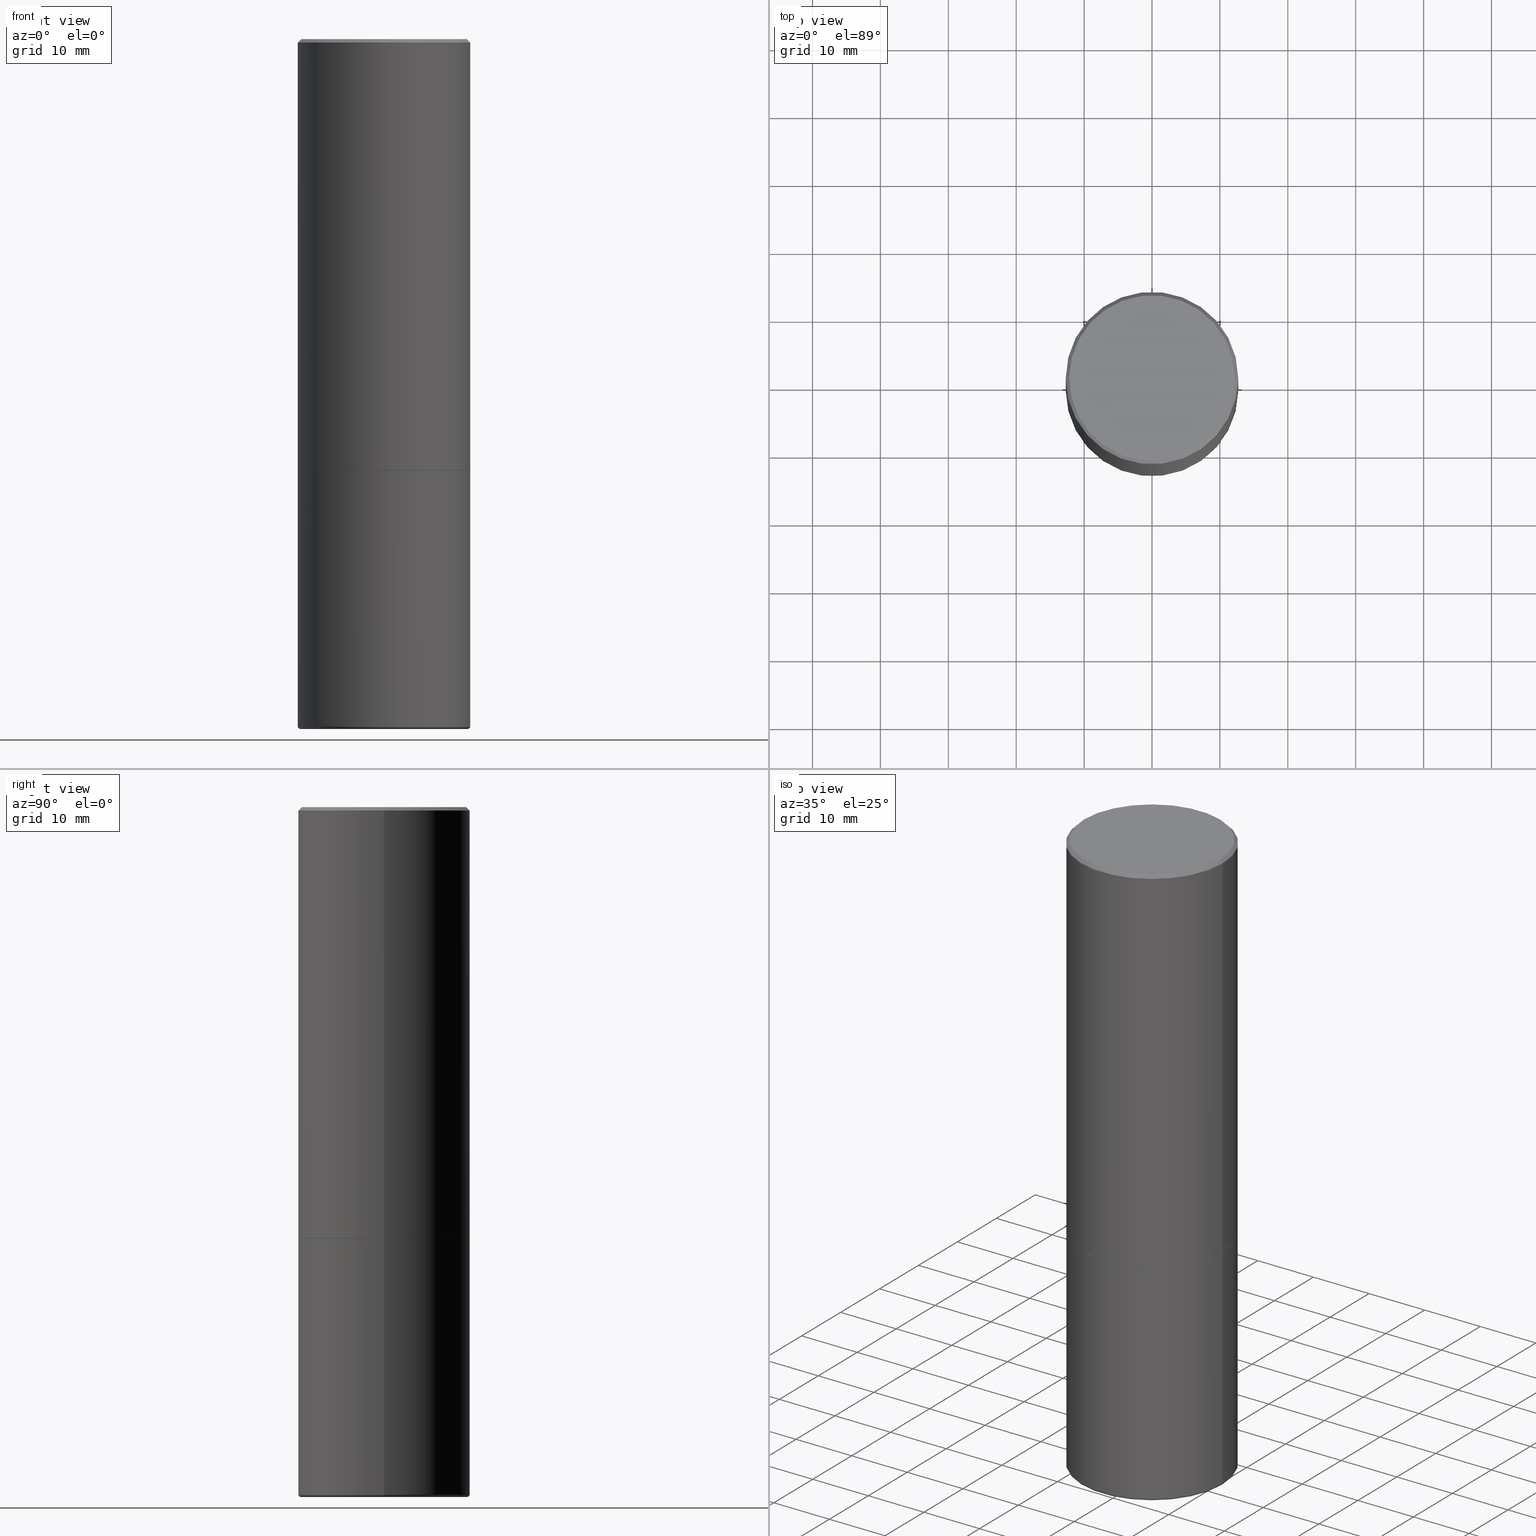
[diagram: canonical four-view strip — front | top / right | iso, engineering-drawing reading convention]
A machine part, canonical four-view strip (front | top / right | iso — engineering-drawing reading convention). The complete STEP part file that produces these views, byte-faithful:
ISO-10303-21;
HEADER;
FILE_DESCRIPTION (( 'STEP AP203' ),
    '1' );
FILE_NAME ('38150.STEP',
    '2023-03-22T20:24:40',
    ( '' ),
    ( '' ),
    'SwSTEP 2.0',
    'SolidWorks 2022',
    '' );
FILE_SCHEMA (( 'CONFIG_CONTROL_DESIGN' ));
ENDSEC;

DATA;
#1 = ORIENTED_EDGE ( 'NONE', *, *, #234, .T. ) ;
#2 = CC_DESIGN_PERSON_AND_ORGANIZATION_ASSIGNMENT ( #268, #403, ( #200 ) ) ;
#3 = COORDINATED_UNIVERSAL_TIME_OFFSET ( 5, 0, .BEHIND. ) ;
#4 = VERTEX_POINT ( 'NONE', #212 ) ;
#5 = SECURITY_CLASSIFICATION_LEVEL ( 'unclassified' ) ;
#6 = AXIS2_PLACEMENT_3D ( 'NONE', #103, #240, #35 ) ;
#7 = CC_DESIGN_PERSON_AND_ORGANIZATION_ASSIGNMENT ( #421, #39, ( #332 ) ) ;
#8 = CARTESIAN_POINT ( 'NONE',  ( -0.4842149606563559416, -1.044314117888104667E-14, -3.999999999999999556 ) ) ;
#9 = ORIENTED_EDGE ( 'NONE', *, *, #310, .F. ) ;
#10 = ADVANCED_FACE ( 'NONE', ( #373 ), #440, .F. ) ;
#11 = CIRCLE ( 'NONE', #411, 0.4799999999999996492 ) ;
#12 = DIRECTION ( 'NONE',  ( -1.000000000000000000, 7.105427357601001859E-15, 0.000000000000000000 ) ) ;
#13 = EDGE_CURVE ( 'NONE', #229, #125, #299, .T. ) ;
#14 = AXIS2_PLACEMENT_3D ( 'NONE', #372, #165, #340 ) ;
#15 = CC_DESIGN_PERSON_AND_ORGANIZATION_ASSIGNMENT ( #176, #209, ( #311 ) ) ;
#16 = ORIENTED_EDGE ( 'NONE', *, *, #390, .F. ) ;
#17 = DIRECTION ( 'NONE',  ( -2.445468806185136597E-29, 3.491481338843145583E-15, 1.000000000000000000 ) ) ;
#18 = CALENDAR_DATE ( 2023, 22, 3 ) ;
#19 = ORIENTED_EDGE ( 'NONE', *, *, #439, .T. ) ;
#20 = DIRECTION ( 'NONE',  ( 1.000000000000000000, -6.982962677686266711E-15, 0.000000000000000000 ) ) ;
#21 = CIRCLE ( 'NONE', #417, 0.4842149606563559416 ) ;
#22 = ORIENTED_EDGE ( 'NONE', *, *, #71, .T. ) ;
#23 = EDGE_LOOP ( 'NONE', ( #290, #38, #406, #55 ) ) ;
#24 = CARTESIAN_POINT ( 'NONE',  ( 0.5000000000000000000, -1.740510624844051430E-14, -3.985020556978680961 ) ) ;
#25 = EDGE_CURVE ( 'NONE', #115, #157, #367, .T. ) ;
#26 = CARTESIAN_POINT ( 'NONE',  ( -0.4799999999999996492, 3.386736898677836830E-15, 1.280553747027767124E-17 ) ) ;
#27 = CARTESIAN_POINT ( 'NONE',  ( 9.076463885798192231E-18, -1.387732332254885124E-14, -3.974623369216377267 ) ) ;
#28 = CARTESIAN_POINT ( 'NONE',  ( 0.000000000000000000, 0.000000000000000000, 0.000000000000000000 ) ) ;
#29 = CARTESIAN_POINT ( 'NONE',  ( 9.745243464097882936E-29, -1.391362490959738252E-14, -3.985020556978680961 ) ) ;
#30 = CARTESIAN_POINT ( 'NONE',  ( -0.4999999999999998335, 3.552713678800499746E-15, -2.459467545127452330E-29 ) ) ;
#31 = PERSON_AND_ORGANIZATION ( #303, #316 ) ;
#32 = CARTESIAN_POINT ( 'NONE',  ( -0.5000000000000000000, -8.448070674724403070E-16, -2.499000000000000110 ) ) ;
#33 = APPROVAL_STATUS ( 'not_yet_approved' ) ;
#34 = DIRECTION ( 'NONE',  ( 2.445468806185136597E-29, -3.491481338843145583E-15, -1.000000000000000000 ) ) ;
#35 = DIRECTION ( 'NONE',  ( 1.000000000000000000, 0.000000000000000000, 0.000000000000000000 ) ) ;
#36 = TOROIDAL_SURFACE ( 'NONE', #262, 0.4850000000000000422, 0.01499999999999998557 ) ;
#37 = CIRCLE ( 'NONE', #331, 0.5000000000000000000 ) ;
#38 = ORIENTED_EDGE ( 'NONE', *, *, #13, .T. ) ;
#39 = PERSON_AND_ORGANIZATION_ROLE ( 'design_supplier' ) ;
#40 = CC_DESIGN_DATE_AND_TIME_ASSIGNMENT ( #142, #274, ( #200 ) ) ;
#41 = DATE_AND_TIME ( #18, #96 ) ;
#42 = LENGTH_MEASURE_WITH_UNIT ( LENGTH_MEASURE( 0.02539999999999999897 ), #216 );
#43 = AXIS2_PLACEMENT_3D ( 'NONE', #428, #70, #398 ) ;
#44 = ORIENTED_EDGE ( 'NONE', *, *, #408, .F. ) ;
#45 = CC_DESIGN_APPROVAL ( #366, ( #332 ) ) ;
#46 = DIRECTION ( 'NONE',  ( 1.000000000000000000, -6.982962677686266711E-15, 0.000000000000000000 ) ) ;
#47 = ORIENTED_EDGE ( 'NONE', *, *, #128, .T. ) ;
#48 = CARTESIAN_POINT ( 'NONE',  ( 0.5000000000000000000, -1.222018468595099830E-14, -2.500000000000000000 ) ) ;
#49 = CYLINDRICAL_SURFACE ( 'NONE', #250, 0.4999999999999998335 ) ;
#50 = CARTESIAN_POINT ( 'NONE',  ( 0.4999999999999996669, -3.500078625662626318E-15, -0.02000000000000002123 ) ) ;
#51 = CARTESIAN_POINT ( 'NONE',  ( 9.781875224740545266E-29, -1.396592535537258075E-14, -3.999999999999999556 ) ) ;
#52 = CC_DESIGN_PERSON_AND_ORGANIZATION_ASSIGNMENT ( #149, #277, ( #332 ) ) ;
#53 = CC_DESIGN_SECURITY_CLASSIFICATION ( #354, ( #332 ) ) ;
#54 = DIRECTION ( 'NONE',  ( -2.445468806185136597E-29, 3.491481338843145583E-15, 1.000000000000000000 ) ) ;
#55 = ORIENTED_EDGE ( 'NONE', *, *, #361, .F. ) ;
#56 = CARTESIAN_POINT ( 'NONE',  ( 6.113672015462842613E-29, -8.728703347107866520E-15, -2.500000000000000444 ) ) ;
#57 = VERTEX_POINT ( 'NONE', #26 ) ;
#58 = FACE_OUTER_BOUND ( 'NONE', #217, .T. ) ;
#59 = AXIS2_PLACEMENT_3D ( 'NONE', #164, #237, #369 ) ;
#60 = EDGE_LOOP ( 'NONE', ( #47, #328 ) ) ;
#61 = FACE_OUTER_BOUND ( 'NONE', #352, .T. ) ;
#62 = ADVANCED_FACE ( 'NONE', ( #306 ), #345, .T. ) ;
#63 = CARTESIAN_POINT ( 'NONE',  ( -9.076463885603793485E-18, -1.387732332254885124E-14, -3.974623369216377267 ) ) ;
#64 = CYLINDRICAL_SURFACE ( 'NONE', #80, 0.4999999999999998335 ) ;
#65 = VECTOR ( 'NONE', #269, 39.37007874015748143 ) ;
#66 = CARTESIAN_POINT ( 'NONE',  ( 1.059981169218608704E-27, -1.513372185525939570E-13, -43.34470210937386270 ) ) ;
#67 = APPLICATION_PROTOCOL_DEFINITION ( 'international standard', 'config_control_design', 1994, #228 ) ;
#68 = LINE ( 'NONE', #300, #124 ) ;
#69 = DIRECTION ( 'NONE',  ( -2.445468806185136597E-29, 3.491481338843145583E-15, 1.000000000000000000 ) ) ;
#70 = DIRECTION ( 'NONE',  ( -6.982962677686266711E-15, -1.000000000000000000, 3.491481338843145583E-15 ) ) ;
#71 = EDGE_CURVE ( 'NONE', #224, #157, #377, .T. ) ;
#72 = PERSON_AND_ORGANIZATION ( #303, #316 ) ;
#73 = ORIENTED_EDGE ( 'NONE', *, *, #278, .F. ) ;
#74 = ADVANCED_FACE ( 'NONE', ( #338 ), #436, .T. ) ;
#75 = DATE_TIME_ROLE ( 'classification_date' ) ;
#76 = ADVANCED_FACE ( 'NONE', ( #267 ), #64, .T. ) ;
#77 = DATE_AND_TIME ( #101, #429 ) ;
#78 = DIRECTION ( 'NONE',  ( -2.445468806185136597E-29, 3.491481338843145583E-15, 1.000000000000000000 ) ) ;
#79 = ORIENTED_EDGE ( 'NONE', *, *, #155, .F. ) ;
#80 = AXIS2_PLACEMENT_3D ( 'NONE', #442, #309, #261 ) ;
#81 = ORIENTED_EDGE ( 'NONE', *, *, #143, .F. ) ;
#82 = CONICAL_SURFACE ( 'NONE', #97, 751.2258538476515923, 1.518436449235072594 ) ;
#83 = DIRECTION ( 'NONE',  ( 1.000000000000000000, -6.982962677686265133E-15, 0.000000000000000000 ) ) ;
#84 = DIRECTION ( 'NONE',  ( 7.105427357601001859E-15, 1.000000000000000000, -3.491481338843145583E-15 ) ) ;
#85 = CIRCLE ( 'NONE', #147, 0.01499999999999997689 ) ;
#86 =( GEOMETRIC_REPRESENTATION_CONTEXT ( 3 ) GLOBAL_UNCERTAINTY_ASSIGNED_CONTEXT ( ( #275 ) ) GLOBAL_UNIT_ASSIGNED_CONTEXT ( ( #252, #182, #418 ) ) REPRESENTATION_CONTEXT ( 'NONE', 'WORKASPACE' ) );
#87 = ORIENTED_EDGE ( 'NONE', *, *, #296, .T. ) ;
#88 = ADVANCED_FACE ( 'NONE', ( #270 ), #242, .F. ) ;
#89 = ORIENTED_EDGE ( 'NONE', *, *, #178, .T. ) ;
#90 = DIRECTION ( 'NONE',  ( -2.445468806185136597E-29, 3.491481338843145583E-15, 1.000000000000000000 ) ) ;
#91 = DIRECTION ( 'NONE',  ( -2.445468806185136597E-29, 3.491481338843145583E-15, 1.000000000000000000 ) ) ;
#92 = ORIENTED_EDGE ( 'NONE', *, *, #278, .T. ) ;
#93 = EDGE_CURVE ( 'NONE', #4, #360, #365, .T. ) ;
#94 = DIRECTION ( 'NONE',  ( 1.000000000000000000, -6.982962677686266711E-15, 0.000000000000000000 ) ) ;
#95 = CONICAL_SURFACE ( 'NONE', #123, 0.4989999999999999991, 0.7853981633972775267 ) ;
#96 = LOCAL_TIME ( 16, 24, 40.00000000000000000, #283 ) ;
#97 = AXIS2_PLACEMENT_3D ( 'NONE', #139, #241, #356 ) ;
#98 = LINE ( 'NONE', #135, #339 ) ;
#99 = FACE_OUTER_BOUND ( 'NONE', #194, .T. ) ;
#100 = CYLINDRICAL_SURFACE ( 'NONE', #172, 0.5000000000000000000 ) ;
#101 = CALENDAR_DATE ( 2023, 22, 3 ) ;
#102 = DIRECTION ( 'NONE',  ( -2.438088387897960049E-29, 3.491481338843145188E-15, 1.000000000000000000 ) ) ;
#103 = CARTESIAN_POINT ( 'NONE',  ( 0.000000000000000000, 0.000000000000000000, 0.000000000000000000 ) ) ;
#104 = CARTESIAN_POINT ( 'NONE',  ( 0.4799999999999996492, -3.396558832296479338E-15, 1.280553747032483033E-17 ) ) ;
#105 = VECTOR ( 'NONE', #335, 39.37007874015748854 ) ;
#106 = DIRECTION ( 'NONE',  ( -2.445468806185136597E-29, 3.491481338843145583E-15, 1.000000000000000000 ) ) ;
#107 = DIRECTION ( 'NONE',  ( -2.445468806185136597E-29, 3.491481338843145583E-15, 1.000000000000000000 ) ) ;
#108 = CALENDAR_DATE ( 2023, 22, 3 ) ;
#109 = ORIENTED_EDGE ( 'NONE', *, *, #25, .T. ) ;
#110 = ADVANCED_FACE ( 'NONE', ( #273 ), #166, .T. ) ;
#111 = APPLICATION_PROTOCOL_DEFINITION ( 'international standard', 'config_control_design', 1994, #186 ) ;
#112 = VECTOR ( 'NONE', #236, 39.37007874015748854 ) ;
#113 = VECTOR ( 'NONE', #368, 39.37007874015748143 ) ;
#114 = PRODUCT_DEFINITION_SHAPE ( 'NONE', 'NONE',  #200 ) ;
#115 = VERTEX_POINT ( 'NONE', #32 ) ;
#116 = ORIENTED_EDGE ( 'NONE', *, *, #294, .T. ) ;
#117 = LINE ( 'NONE', #50, #118 ) ;
#118 = VECTOR ( 'NONE', #249, 39.37007874015748143 ) ;
#119 = APPROVAL ( #33, 'UNSPECIFIED' ) ;
#120 = ADVANCED_BREP_SHAPE_REPRESENTATION ( '38150', ( #381, #391, #6 ), #86 ) ;
#121 = DIRECTION ( 'NONE',  ( 1.000000000000000000, -6.982962677686266711E-15, 4.883557194083113462E-29 ) ) ;
#122 = ORIENTED_EDGE ( 'NONE', *, *, #93, .T. ) ;
#123 = AXIS2_PLACEMENT_3D ( 'NONE', #265, #260, #94 ) ;
#124 = VECTOR ( 'NONE', #431, 39.37007874015748143 ) ;
#125 = VERTEX_POINT ( 'NONE', #438 ) ;
#126 = CARTESIAN_POINT ( 'NONE',  ( 0.4842149606563559416, -1.734718035361323965E-14, -3.999999999999999556 ) ) ;
#127 = ORIENTED_EDGE ( 'NONE', *, *, #376, .F. ) ;
#128 = EDGE_CURVE ( 'NONE', #57, #281, #11, .T. ) ;
#129 = CARTESIAN_POINT ( 'NONE',  ( 0.4989999999999999991, -1.221320172327331386E-14, -2.500000000000000444 ) ) ;
#130 = EDGE_CURVE ( 'NONE', #140, #199, #37, .T. ) ;
#131 = ORIENTED_EDGE ( 'NONE', *, *, #143, .T. ) ;
#132 = CARTESIAN_POINT ( 'NONE',  ( 6.111226546656657010E-29, -8.725211865769021935E-15, -2.499000000000000110 ) ) ;
#133 = CIRCLE ( 'NONE', #174, 0.5000000000000000000 ) ;
#134 = ADVANCED_FACE ( 'NONE', ( #342 ), #385, .T. ) ;
#135 = CARTESIAN_POINT ( 'NONE',  ( 0.4999999999999998335, -3.491481338843132566E-15, 2.438088387897967336E-29 ) ) ;
#136 = DIRECTION ( 'NONE',  ( -2.445468806185136597E-29, 3.491481338843145583E-15, 1.000000000000000000 ) ) ;
#137 = DIRECTION ( 'NONE',  ( -0.7071067811864267805, 7.493145998869918709E-15, 0.7071067811866682540 ) ) ;
#138 = DIRECTION ( 'NONE',  ( 1.000000000000000000, -6.982962677686266711E-15, 4.876176775795935793E-29 ) ) ;
#139 = CARTESIAN_POINT ( 'NONE',  ( 1.059981169218608704E-27, -1.513372185525939570E-13, -43.34470210937386270 ) ) ;
#140 = VERTEX_POINT ( 'NONE', #298 ) ;
#141 = DIRECTION ( 'NONE',  ( -2.445468806185136597E-29, 3.491481338843145583E-15, 1.000000000000000000 ) ) ;
#142 = DATE_AND_TIME ( #266, #272 ) ;
#143 = EDGE_CURVE ( 'NONE', #347, #314, #255, .T. ) ;
#144 = SHAPE_DEFINITION_REPRESENTATION ( #114, #120 ) ;
#145 = ORIENTED_EDGE ( 'NONE', *, *, #130, .F. ) ;
#146 = CALENDAR_DATE ( 2023, 22, 3 ) ;
#147 = AXIS2_PLACEMENT_3D ( 'NONE', #185, #84, #12 ) ;
#148 = ORIENTED_EDGE ( 'NONE', *, *, #93, .F. ) ;
#149 = PERSON_AND_ORGANIZATION ( #303, #316 ) ;
#150 = EDGE_LOOP ( 'NONE', ( #295, #109, #161, #79 ) ) ;
#151 = PLANE ( 'NONE',  #230 ) ;
#152 = CARTESIAN_POINT ( 'NONE',  ( 0.000000000000000000, 0.000000000000000000, 0.000000000000000000 ) ) ;
#153 = CLOSED_SHELL ( 'NONE', ( #355, #222, #162, #324, #74, #389, #10 ) ) ;
#154 = CIRCLE ( 'NONE', #315, 0.5000000000000000000 ) ;
#155 = EDGE_CURVE ( 'NONE', #191, #224, #98, .T. ) ;
#156 = ORIENTED_EDGE ( 'NONE', *, *, #221, .T. ) ;
#157 = VERTEX_POINT ( 'NONE', #264 ) ;
#158 = CARTESIAN_POINT ( 'NONE',  ( -0.5000000000000000000, -7.768450449552122015E-15, -3.985020556978680961 ) ) ;
#159 = COORDINATED_UNIVERSAL_TIME_OFFSET ( 5, 0, .BEHIND. ) ;
#160 = EDGE_LOOP ( 'NONE', ( #330, #425, #363, #73 ) ) ;
#161 = ORIENTED_EDGE ( 'NONE', *, *, #71, .F. ) ;
#162 = ADVANCED_FACE ( 'NONE', ( #400 ), #100, .T. ) ;
#163 = DIRECTION ( 'NONE',  ( -2.445468806185136877E-29, 3.491481338843145188E-15, 1.000000000000000000 ) ) ;
#164 = CARTESIAN_POINT ( 'NONE',  ( 4.890937612370278413E-31, -6.982962677686297772E-17, -0.02000000000000002123 ) ) ;
#165 = DIRECTION ( 'NONE',  ( -2.445468806185136597E-29, 3.491481338843145583E-15, 1.000000000000000000 ) ) ;
#166 = CONICAL_SURFACE ( 'NONE', #59, 0.4999999999999996669, 0.7853981633974472798 ) ;
#167 = CIRCLE ( 'NONE', #190, 0.4799999999999996492 ) ;
#168 = CARTESIAN_POINT ( 'NONE',  ( 6.113672015462842613E-29, -8.728703347107864943E-15, -2.500000000000000000 ) ) ;
#169 = CARTESIAN_POINT ( 'NONE',  ( 0.4999999999999996669, -3.500078625662626318E-15, -0.02000000000000002123 ) ) ;
#170 = DIRECTION ( 'NONE',  ( -2.445468806185136597E-29, 3.491481338843145583E-15, 1.000000000000000000 ) ) ;
#171 = CARTESIAN_POINT ( 'NONE',  ( 6.113672015462842613E-29, -8.728703347107866520E-15, -2.500000000000000444 ) ) ;
#172 = AXIS2_PLACEMENT_3D ( 'NONE', #359, #91, #193 ) ;
#173 = CARTESIAN_POINT ( 'NONE',  ( 6.113672015462842613E-29, -8.728703347107866520E-15, -2.500000000000000444 ) ) ;
#174 = AXIS2_PLACEMENT_3D ( 'NONE', #323, #388, #46 ) ;
#175 = APPROVAL_ROLE ( '' ) ;
#176 = PERSON_AND_ORGANIZATION ( #303, #316 ) ;
#177 = ORIENTED_EDGE ( 'NONE', *, *, #361, .T. ) ;
#178 = EDGE_CURVE ( 'NONE', #125, #229, #223, .T. ) ;
#179 = DATE_AND_TIME ( #146, #422 ) ;
#180 = AXIS2_PLACEMENT_3D ( 'NONE', #233, #239, #432 ) ;
#181 = TOROIDAL_SURFACE ( 'NONE', #263, 0.4850000000000000422, 0.01499999999999998557 ) ;
#182 =( NAMED_UNIT ( * ) PLANE_ANGLE_UNIT ( ) SI_UNIT ( $, .RADIAN. ) );
#183 = ORIENTED_EDGE ( 'NONE', *, *, #189, .T. ) ;
#184 = FACE_OUTER_BOUND ( 'NONE', #150, .T. ) ;
#185 = CARTESIAN_POINT ( 'NONE',  ( -0.4850000000000000422, -1.046749264116089751E-14, -3.985020556978680961 ) ) ;
#186 = APPLICATION_CONTEXT ( 'configuration controlled 3d designs of mechanical parts and assemblies' ) ;
#187 = FACE_OUTER_BOUND ( 'NONE', #60, .T. ) ;
#188 = ADVANCED_FACE ( 'NONE', ( #187 ), #151, .F. ) ;
#189 = EDGE_CURVE ( 'NONE', #281, #224, #117, .T. ) ;
#190 = AXIS2_PLACEMENT_3D ( 'NONE', #351, #78, #415 ) ;
#191 = VERTEX_POINT ( 'NONE', #416 ) ;
#192 = DIRECTION ( 'NONE',  ( -2.445468806185136597E-29, 3.491481338843145583E-15, 1.000000000000000000 ) ) ;
#193 = DIRECTION ( 'NONE',  ( 1.000000000000000000, -6.982962677686266711E-15, 4.876176775795935793E-29 ) ) ;
#194 = EDGE_LOOP ( 'NONE', ( #423, #349, #44, #81 ) ) ;
#195 = ORIENTED_EDGE ( 'NONE', *, *, #235, .F. ) ;
#196 = AXIS2_PLACEMENT_3D ( 'NONE', #168, #102, #301 ) ;
#197 = CARTESIAN_POINT ( 'NONE',  ( 9.745243464097882936E-29, -1.391362490959738252E-14, -3.985020556978680961 ) ) ;
#198 = APPROVAL_PERSON_ORGANIZATION ( #31, #119, #307 ) ;
#199 = VERTEX_POINT ( 'NONE', #48 ) ;
#200 = PRODUCT_DEFINITION ( 'UNKNOWN', '', #332, #437 ) ;
#201 = LINE ( 'NONE', #129, #65 ) ;
#202 = DIRECTION ( 'NONE',  ( -2.445468806185136877E-29, 3.491481338843145188E-15, 1.000000000000000000 ) ) ;
#203 = EDGE_CURVE ( 'NONE', #360, #313, #85, .T. ) ;
#204 = FACE_OUTER_BOUND ( 'NONE', #23, .T. ) ;
#205 = CARTESIAN_POINT ( 'NONE',  ( -0.4989999999999999991, -5.183095095664967388E-15, -2.500000000000000444 ) ) ;
#206 = VECTOR ( 'NONE', #137, 39.37007874015748143 ) ;
#207 = CC_DESIGN_APPROVAL ( #119, ( #200 ) ) ;
#208 = DIRECTION ( 'NONE',  ( 1.000000000000000000, -6.982962677686266711E-15, 0.000000000000000000 ) ) ;
#209 = PERSON_AND_ORGANIZATION_ROLE ( 'design_owner' ) ;
#210 = DIRECTION ( 'NONE',  ( -2.445468806185136597E-29, 3.491481338843145583E-15, 1.000000000000000000 ) ) ;
#211 = DIRECTION ( 'NONE',  ( 1.000000000000000000, -6.982962677686269077E-15, 0.000000000000000000 ) ) ;
#212 = CARTESIAN_POINT ( 'NONE',  ( 9.713479404897197644E-29, -1.388639978643455325E-14, -3.974623369216377267 ) ) ;
#213 = AXIS2_PLACEMENT_3D ( 'NONE', #173, #136, #208 ) ;
#214 = EDGE_LOOP ( 'NONE', ( #289, #177, #420, #378 ) ) ;
#215 = APPROVAL_DATE_TIME ( #179, #380 ) ;
#216 =( LENGTH_UNIT ( ) NAMED_UNIT ( * ) SI_UNIT ( $, .METRE. ) );
#217 = EDGE_LOOP ( 'NONE', ( #148, #395, #325 ) ) ;
#218 = AXIS2_PLACEMENT_3D ( 'NONE', #427, #292, #424 ) ;
#219 = EDGE_LOOP ( 'NONE', ( #89, #1, #358, #195 ) ) ;
#220 = DIRECTION ( 'NONE',  ( -2.445468806185136597E-29, 3.491481338843145583E-15, 1.000000000000000000 ) ) ;
#221 = EDGE_CURVE ( 'NONE', #199, #140, #392, .T. ) ;
#222 = ADVANCED_FACE ( 'NONE', ( #99 ), #36, .T. ) ;
#223 = CIRCLE ( 'NONE', #276, 0.4989999999999999991 ) ;
#224 = VERTEX_POINT ( 'NONE', #169 ) ;
#225 = COORDINATED_UNIVERSAL_TIME_OFFSET ( 5, 0, .BEHIND. ) ;
#226 = ORIENTED_EDGE ( 'NONE', *, *, #13, .F. ) ;
#227 = CARTESIAN_POINT ( 'NONE',  ( 0.5000000000000000000, -3.491481338843133355E-15, 2.438088387897967896E-29 ) ) ;
#228 = APPLICATION_CONTEXT ( 'configuration controlled 3d designs of mechanical parts and assemblies' ) ;
#229 = VERTEX_POINT ( 'NONE', #258 ) ;
#230 = AXIS2_PLACEMENT_3D ( 'NONE', #282, #353, #414 ) ;
#231 = DIRECTION ( 'NONE',  ( 1.000000000000000000, -6.982962677686265133E-15, 0.000000000000000000 ) ) ;
#232 = CIRCLE ( 'NONE', #379, 0.4842149606563559416 ) ;
#233 = CARTESIAN_POINT ( 'NONE',  ( 4.890937612370278413E-31, -6.982962677686297772E-17, -0.02000000000000002123 ) ) ;
#234 = EDGE_CURVE ( 'NONE', #229, #115, #404, .T. ) ;
#235 = EDGE_CURVE ( 'NONE', #125, #191, #201, .T. ) ;
#236 = DIRECTION ( 'NONE',  ( -0.9986295347545742773, 6.790662755453663733E-15, -0.05233595624293798515 ) ) ;
#237 = DIRECTION ( 'NONE',  ( 2.445468806185136597E-29, -3.491481338843145583E-15, -1.000000000000000000 ) ) ;
#238 = VECTOR ( 'NONE', #407, 39.37007874015748143 ) ;
#239 = DIRECTION ( 'NONE',  ( 2.445468806185136597E-29, -3.491481338843145583E-15, -1.000000000000000000 ) ) ;
#240 = DIRECTION ( 'NONE',  ( 0.000000000000000000, 0.000000000000000000, 1.000000000000000000 ) ) ;
#241 = DIRECTION ( 'NONE',  ( 2.445468806185136597E-29, -3.491481338843145583E-15, -1.000000000000000000 ) ) ;
#242 = PLANE ( 'NONE',  #196 ) ;
#243 = MECHANICAL_CONTEXT ( 'NONE', #228, 'mechanical' ) ;
#244 = AXIS2_PLACEMENT_3D ( 'NONE', #171, #107, #374 ) ;
#245 = CIRCLE ( 'NONE', #256, 0.5000000000000000000 ) ;
#246 = PERSON_AND_ORGANIZATION_ROLE ( 'classification_officer' ) ;
#247 = CARTESIAN_POINT ( 'NONE',  ( 9.745243464097882936E-29, -1.391362490959738252E-14, -3.985020556978680961 ) ) ;
#248 = ORIENTED_EDGE ( 'NONE', *, *, #312, .F. ) ;
#249 = DIRECTION ( 'NONE',  ( 0.7071067811865467956, -7.319954787623254468E-15, -0.7071067811865482389 ) ) ;
#250 = AXIS2_PLACEMENT_3D ( 'NONE', #152, #192, #320 ) ;
#251 = ADVANCED_FACE ( 'NONE', ( #204 ), #95, .T. ) ;
#252 =( CONVERSION_BASED_UNIT ( 'INCH', #42 ) LENGTH_UNIT ( ) NAMED_UNIT ( #287 ) );
#253 = EDGE_CURVE ( 'NONE', #191, #115, #154, .T. ) ;
#254 = ORIENTED_EDGE ( 'NONE', *, *, #312, .T. ) ;
#255 = CIRCLE ( 'NONE', #43, 0.01499999999999997689 ) ;
#256 = AXIS2_PLACEMENT_3D ( 'NONE', #29, #210, #20 ) ;
#257 = ORIENTED_EDGE ( 'NONE', *, *, #128, .F. ) ;
#258 = CARTESIAN_POINT ( 'NONE',  ( -0.4989999999999999991, -5.177796641316744197E-15, -2.500000000000000444 ) ) ;
#259 = ORIENTED_EDGE ( 'NONE', *, *, #178, .F. ) ;
#260 = DIRECTION ( 'NONE',  ( -2.445468806185136597E-29, 3.491481338843145583E-15, 1.000000000000000000 ) ) ;
#261 = DIRECTION ( 'NONE',  ( 1.000000000000000000, -6.982962677686267499E-15, 4.876176775795936353E-29 ) ) ;
#262 = AXIS2_PLACEMENT_3D ( 'NONE', #197, #90, #333 ) ;
#263 = AXIS2_PLACEMENT_3D ( 'NONE', #247, #220, #121 ) ;
#264 = CARTESIAN_POINT ( 'NONE',  ( -0.4999999999999996669, 3.421651712066268085E-15, -0.02000000000000002123 ) ) ;
#265 = CARTESIAN_POINT ( 'NONE',  ( 6.113672015462842613E-29, -8.728703347107866520E-15, -2.500000000000000444 ) ) ;
#266 = CALENDAR_DATE ( 2023, 22, 3 ) ;
#267 = FACE_OUTER_BOUND ( 'NONE', #214, .T. ) ;
#268 = PERSON_AND_ORGANIZATION ( #303, #316 ) ;
#269 = DIRECTION ( 'NONE',  ( 0.7071067811864267805, -2.468850131080992517E-15, 0.7071067811866682540 ) ) ;
#270 = FACE_OUTER_BOUND ( 'NONE', #305, .T. ) ;
#271 = AXIS2_PLACEMENT_3D ( 'NONE', #28, #170, #138 ) ;
#272 = LOCAL_TIME ( 16, 24, 40.00000000000000000, #159 ) ;
#273 = FACE_OUTER_BOUND ( 'NONE', #293, .T. ) ;
#274 = DATE_TIME_ROLE ( 'creation_date' ) ;
#275 = UNCERTAINTY_MEASURE_WITH_UNIT (LENGTH_MEASURE( 1.000000000000000082E-05 ), #252, 'distance_accuracy_value', 'NONE');
#276 = AXIS2_PLACEMENT_3D ( 'NONE', #56, #327, #319 ) ;
#277 = PERSON_AND_ORGANIZATION_ROLE ( 'creator' ) ;
#278 = EDGE_CURVE ( 'NONE', #314, #199, #364, .T. ) ;
#279 = DIRECTION ( 'NONE',  ( 1.000000000000000000, -6.982962677686267499E-15, 0.000000000000000000 ) ) ;
#280 = DIRECTION ( 'NONE',  ( 1.000000000000000000, -6.982962677686267499E-15, 0.000000000000000000 ) ) ;
#281 = VERTEX_POINT ( 'NONE', #104 ) ;
#282 = CARTESIAN_POINT ( 'NONE',  ( 3.351822085289405181E-15, 0.4799999999999996492, -1.669508273909558064E-15 ) ) ;
#283 = COORDINATED_UNIVERSAL_TIME_OFFSET ( 5, 0, .BEHIND. ) ;
#284 = APPROVAL_PERSON_ORGANIZATION ( #72, #366, #175 ) ;
#285 = CARTESIAN_POINT ( 'NONE',  ( 6.111226546656657010E-29, -8.725211865769021935E-15, -2.499000000000000110 ) ) ;
#286 = CARTESIAN_POINT ( 'NONE',  ( 6.113672015462842613E-29, -8.728703347107864943E-15, -2.500000000000000000 ) ) ;
#287 = DIMENSIONAL_EXPONENTS ( 1.000000000000000000, 0.000000000000000000, 0.000000000000000000, 0.000000000000000000, 0.000000000000000000, 0.000000000000000000, 0.000000000000000000 ) ;
#288 = EDGE_CURVE ( 'NONE', #4, #347, #337, .T. ) ;
#289 = ORIENTED_EDGE ( 'NONE', *, *, #25, .F. ) ;
#290 = ORIENTED_EDGE ( 'NONE', *, *, #234, .F. ) ;
#291 = VECTOR ( 'NONE', #163, 39.37007874015748143 ) ;
#292 = DIRECTION ( 'NONE',  ( 2.438088387897960049E-29, -3.491481338843145188E-15, -1.000000000000000000 ) ) ;
#293 = EDGE_LOOP ( 'NONE', ( #396, #257, #87, #116 ) ) ;
#294 = EDGE_CURVE ( 'NONE', #157, #224, #350, .T. ) ;
#295 = ORIENTED_EDGE ( 'NONE', *, *, #253, .T. ) ;
#296 = EDGE_CURVE ( 'NONE', #57, #157, #68, .T. ) ;
#297 = PLANE ( 'NONE',  #218 ) ;
#298 = CARTESIAN_POINT ( 'NONE',  ( -0.5000000000000000000, -7.768450449552122015E-15, -2.500000000000000000 ) ) ;
#299 = CIRCLE ( 'NONE', #213, 0.4989999999999999991 ) ;
#300 = CARTESIAN_POINT ( 'NONE',  ( -0.4999999999999996669, 3.421651712066268085E-15, -0.02000000000000002123 ) ) ;
#301 = DIRECTION ( 'NONE',  ( 1.000000000000000000, -6.982962677686265922E-15, 4.876176775795935793E-29 ) ) ;
#302 = DATE_AND_TIME ( #108, #322 ) ;
#303 = PERSON ( 'UNSPECIFIED', 'UNSPECIFIED', 'UNSPECIFIED', ('UNSPECIFIED'), ('UNSPECIFIED'), ('UNSPECIFIED') ) ;
#304 = DIRECTION ( 'NONE',  ( 1.000000000000000000, -6.982962677686266711E-15, 0.000000000000000000 ) ) ;
#305 = EDGE_LOOP ( 'NONE', ( #259, #226 ) ) ;
#306 = FACE_OUTER_BOUND ( 'NONE', #384, .T. ) ;
#307 = APPROVAL_ROLE ( '' ) ;
#308 = AXIS2_PLACEMENT_3D ( 'NONE', #341, #106, #304 ) ;
#309 = DIRECTION ( 'NONE',  ( -2.445468806185136597E-29, 3.491481338843145583E-15, 1.000000000000000000 ) ) ;
#310 = EDGE_CURVE ( 'NONE', #313, #140, #362, .T. ) ;
#311 = PRODUCT ( '38150', '38150', '', ( #243 ) ) ;
#312 = EDGE_CURVE ( 'NONE', #313, #314, #245, .T. ) ;
#313 = VERTEX_POINT ( 'NONE', #158 ) ;
#314 = VERTEX_POINT ( 'NONE', #24 ) ;
#315 = AXIS2_PLACEMENT_3D ( 'NONE', #132, #399, #231 ) ;
#316 = ORGANIZATION ( 'UNSPECIFIED', 'UNSPECIFIED', '' ) ;
#317 = DIRECTION ( 'NONE',  ( -2.445468806185136597E-29, 3.491481338843145583E-15, 1.000000000000000000 ) ) ;
#318 = ORIENTED_EDGE ( 'NONE', *, *, #203, .F. ) ;
#319 = DIRECTION ( 'NONE',  ( 1.000000000000000000, -6.982962677686266711E-15, 0.000000000000000000 ) ) ;
#320 = DIRECTION ( 'NONE',  ( 1.000000000000000000, -6.982962677686267499E-15, 4.876176775795936353E-29 ) ) ;
#321 = AXIS2_PLACEMENT_3D ( 'NONE', #66, #34, #402 ) ;
#322 = LOCAL_TIME ( 16, 24, 40.00000000000000000, #375 ) ;
#323 = CARTESIAN_POINT ( 'NONE',  ( 9.745243464097882936E-29, -1.391362490959738252E-14, -3.985020556978680961 ) ) ;
#324 = ADVANCED_FACE ( 'NONE', ( #61 ), #297, .F. ) ;
#325 = ORIENTED_EDGE ( 'NONE', *, *, #439, .F. ) ;
#326 = CARTESIAN_POINT ( 'NONE',  ( 9.781875224740545266E-29, -1.396592535537258075E-14, -3.999999999999999556 ) ) ;
#327 = DIRECTION ( 'NONE',  ( -2.445468806185136597E-29, 3.491481338843145583E-15, 1.000000000000000000 ) ) ;
#328 = ORIENTED_EDGE ( 'NONE', *, *, #390, .T. ) ;
#329 = PERSON_AND_ORGANIZATION ( #303, #316 ) ;
#330 = ORIENTED_EDGE ( 'NONE', *, *, #408, .T. ) ;
#331 = AXIS2_PLACEMENT_3D ( 'NONE', #344, #69, #211 ) ;
#332 = PRODUCT_DEFINITION_FORMATION_WITH_SPECIFIED_SOURCE ( 'ANY', '', #311, .NOT_KNOWN. ) ;
#333 = DIRECTION ( 'NONE',  ( 1.000000000000000000, -6.982962677686266711E-15, 4.883557194083113462E-29 ) ) ;
#334 = ORIENTED_EDGE ( 'NONE', *, *, #296, .F. ) ;
#335 = DIRECTION ( 'NONE',  ( 0.9986295347545742773, -7.033825938272001856E-15, -0.05233595624293798515 ) ) ;
#336 = DIRECTION ( 'NONE',  ( 1.000000000000000000, -6.982962677686267499E-15, 4.876036955247132767E-29 ) ) ;
#337 = LINE ( 'NONE', #27, #105 ) ;
#338 = FACE_OUTER_BOUND ( 'NONE', #426, .T. ) ;
#339 = VECTOR ( 'NONE', #202, 39.37007874015748143 ) ;
#340 = DIRECTION ( 'NONE',  ( 1.000000000000000000, -6.982962677686266711E-15, 0.000000000000000000 ) ) ;
#341 = CARTESIAN_POINT ( 'NONE',  ( 4.890937612370278413E-31, -6.982962677686297772E-17, -0.02000000000000002123 ) ) ;
#342 = FACE_OUTER_BOUND ( 'NONE', #219, .T. ) ;
#343 = CC_DESIGN_DATE_AND_TIME_ASSIGNMENT ( #41, #75, ( #354 ) ) ;
#344 = CARTESIAN_POINT ( 'NONE',  ( 6.113672015462842613E-29, -8.728703347107864943E-15, -2.500000000000000000 ) ) ;
#345 = CONICAL_SURFACE ( 'NONE', #180, 0.4999999999999996669, 0.7853981633974472798 ) ;
#346 = APPROVAL_STATUS ( 'not_yet_approved' ) ;
#347 = VERTEX_POINT ( 'NONE', #126 ) ;
#348 = PERSON_AND_ORGANIZATION ( #303, #316 ) ;
#349 = ORIENTED_EDGE ( 'NONE', *, *, #203, .T. ) ;
#350 = CIRCLE ( 'NONE', #14, 0.4999999999999996669 ) ;
#351 = CARTESIAN_POINT ( 'NONE',  ( -3.131554243005659264E-46, 4.471029511141341874E-32, 1.280553747030123384E-17 ) ) ;
#352 = EDGE_LOOP ( 'NONE', ( #156, #394 ) ) ;
#353 = DIRECTION ( 'NONE',  ( 2.438088387897960049E-29, -3.491481338843145188E-15, -1.000000000000000000 ) ) ;
#354 = SECURITY_CLASSIFICATION ( '', '', #5 ) ;
#355 = ADVANCED_FACE ( 'NONE', ( #58 ), #82, .F. ) ;
#356 = DIRECTION ( 'NONE',  ( -1.000000000000000000, 6.982962677686267499E-15, 0.000000000000000000 ) ) ;
#357 = APPROVAL_ROLE ( '' ) ;
#358 = ORIENTED_EDGE ( 'NONE', *, *, #253, .F. ) ;
#359 = CARTESIAN_POINT ( 'NONE',  ( 0.000000000000000000, 0.000000000000000000, 0.000000000000000000 ) ) ;
#360 = VERTEX_POINT ( 'NONE', #8 ) ;
#361 = EDGE_CURVE ( 'NONE', #115, #191, #393, .T. ) ;
#362 = LINE ( 'NONE', #401, #113 ) ;
#363 = ORIENTED_EDGE ( 'NONE', *, *, #221, .F. ) ;
#364 = LINE ( 'NONE', #227, #291 ) ;
#365 = LINE ( 'NONE', #63, #112 ) ;
#366 = APPROVAL ( #346, 'UNSPECIFIED' ) ;
#367 = LINE ( 'NONE', #30, #238 ) ;
#368 = DIRECTION ( 'NONE',  ( -2.445468806185136877E-29, 3.491481338843145188E-15, 1.000000000000000000 ) ) ;
#369 = DIRECTION ( 'NONE',  ( -1.000000000000000000, 6.982962677686266711E-15, 0.000000000000000000 ) ) ;
#370 = AXIS2_PLACEMENT_3D ( 'NONE', #286, #419, #435 ) ;
#371 = APPROVAL_PERSON_ORGANIZATION ( #329, #380, #357 ) ;
#372 = CARTESIAN_POINT ( 'NONE',  ( 4.890937612370278413E-31, -6.982962677686297772E-17, -0.02000000000000002123 ) ) ;
#373 = FACE_OUTER_BOUND ( 'NONE', #382, .T. ) ;
#374 = DIRECTION ( 'NONE',  ( 1.000000000000000000, -6.982962677686266711E-15, 0.000000000000000000 ) ) ;
#375 = COORDINATED_UNIVERSAL_TIME_OFFSET ( 5, 0, .BEHIND. ) ;
#376 = EDGE_CURVE ( 'NONE', #347, #360, #21, .T. ) ;
#377 = CIRCLE ( 'NONE', #308, 0.4999999999999996669 ) ;
#378 = ORIENTED_EDGE ( 'NONE', *, *, #294, .F. ) ;
#379 = AXIS2_PLACEMENT_3D ( 'NONE', #326, #17, #279 ) ;
#380 = APPROVAL ( #387, 'UNSPECIFIED' ) ;
#381 = MANIFOLD_SOLID_BREP ( 'Body-Move/Copy2[1]', #153 ) ;
#382 = EDGE_LOOP ( 'NONE', ( #409, #122, #127 ) ) ;
#383 = APPROVAL_DATE_TIME ( #77, #366 ) ;
#384 = EDGE_LOOP ( 'NONE', ( #16, #183, #22, #334 ) ) ;
#385 = CONICAL_SURFACE ( 'NONE', #244, 0.4989999999999999991, 0.7853981633972775267 ) ;
#386 = AXIS2_PLACEMENT_3D ( 'NONE', #285, #317, #83 ) ;
#387 = APPROVAL_STATUS ( 'not_yet_approved' ) ;
#388 = DIRECTION ( 'NONE',  ( -2.445468806185136597E-29, 3.491481338843145583E-15, 1.000000000000000000 ) ) ;
#389 = ADVANCED_FACE ( 'NONE', ( #412 ), #181, .T. ) ;
#390 = EDGE_CURVE ( 'NONE', #281, #57, #167, .T. ) ;
#391 = MANIFOLD_SOLID_BREP ( 'Body-Move/Copy2[2]', #397 ) ;
#392 = CIRCLE ( 'NONE', #370, 0.5000000000000000000 ) ;
#393 = CIRCLE ( 'NONE', #386, 0.5000000000000000000 ) ;
#394 = ORIENTED_EDGE ( 'NONE', *, *, #130, .T. ) ;
#395 = ORIENTED_EDGE ( 'NONE', *, *, #288, .T. ) ;
#396 = ORIENTED_EDGE ( 'NONE', *, *, #189, .F. ) ;
#397 = CLOSED_SHELL ( 'NONE', ( #134, #430, #62, #110, #76, #251, #88, #188 ) ) ;
#398 = DIRECTION ( 'NONE',  ( 1.000000000000000000, -6.982962677686279332E-15, 0.000000000000000000 ) ) ;
#399 = DIRECTION ( 'NONE',  ( -2.445468806185136597E-29, 3.491481338843145583E-15, 1.000000000000000000 ) ) ;
#400 = FACE_OUTER_BOUND ( 'NONE', #160, .T. ) ;
#401 = CARTESIAN_POINT ( 'NONE',  ( -0.5000000000000000000, 3.552713678800500929E-15, -2.459467545127452891E-29 ) ) ;
#402 = DIRECTION ( 'NONE',  ( -1.000000000000000000, 6.982962677686267499E-15, 0.000000000000000000 ) ) ;
#403 = PERSON_AND_ORGANIZATION_ROLE ( 'creator' ) ;
#404 = LINE ( 'NONE', #205, #206 ) ;
#405 = CARTESIAN_POINT ( 'NONE',  ( -3.131554243005659264E-46, 4.471029511141341874E-32, 1.280553747030123384E-17 ) ) ;
#406 = ORIENTED_EDGE ( 'NONE', *, *, #235, .T. ) ;
#407 = DIRECTION ( 'NONE',  ( -2.445468806185136877E-29, 3.491481338843145188E-15, 1.000000000000000000 ) ) ;
#408 = EDGE_CURVE ( 'NONE', #314, #313, #133, .T. ) ;
#409 = ORIENTED_EDGE ( 'NONE', *, *, #288, .F. ) ;
#410 = CC_DESIGN_PERSON_AND_ORGANIZATION_ASSIGNMENT ( #348, #246, ( #354 ) ) ;
#411 = AXIS2_PLACEMENT_3D ( 'NONE', #405, #141, #336 ) ;
#412 = FACE_OUTER_BOUND ( 'NONE', #413, .T. ) ;
#413 = EDGE_LOOP ( 'NONE', ( #318, #19, #131, #248 ) ) ;
#414 = DIRECTION ( 'NONE',  ( -1.000000000000000000, 6.982962677686265922E-15, -4.876176775795935793E-29 ) ) ;
#415 = DIRECTION ( 'NONE',  ( 1.000000000000000000, -6.982962677686267499E-15, 4.876036955247132767E-29 ) ) ;
#416 = CARTESIAN_POINT ( 'NONE',  ( 0.5000000000000000000, -1.221669320461215371E-14, -2.499000000000000110 ) ) ;
#417 = AXIS2_PLACEMENT_3D ( 'NONE', #51, #54, #280 ) ;
#418 =( NAMED_UNIT ( * ) SI_UNIT ( $, .STERADIAN. ) SOLID_ANGLE_UNIT ( ) );
#419 = DIRECTION ( 'NONE',  ( -2.445468806185136597E-29, 3.491481338843145583E-15, 1.000000000000000000 ) ) ;
#420 = ORIENTED_EDGE ( 'NONE', *, *, #155, .T. ) ;
#421 = PERSON_AND_ORGANIZATION ( #303, #316 ) ;
#422 = LOCAL_TIME ( 16, 24, 40.00000000000000000, #225 ) ;
#423 = ORIENTED_EDGE ( 'NONE', *, *, #376, .T. ) ;
#424 = DIRECTION ( 'NONE',  ( -1.000000000000000000, 6.982962677686265922E-15, -4.876176775795935793E-29 ) ) ;
#425 = ORIENTED_EDGE ( 'NONE', *, *, #310, .T. ) ;
#426 = EDGE_LOOP ( 'NONE', ( #9, #254, #92, #145 ) ) ;
#427 = CARTESIAN_POINT ( 'NONE',  ( 3.491481338843194098E-15, 0.4999999999999912292, -2.500000000000001776 ) ) ;
#428 = CARTESIAN_POINT ( 'NONE',  ( 0.4850000000000000422, -1.730036180827522093E-14, -3.985020556978680961 ) ) ;
#429 = LOCAL_TIME ( 16, 24, 40.00000000000000000, #3 ) ;
#430 = ADVANCED_FACE ( 'NONE', ( #184 ), #49, .T. ) ;
#431 = DIRECTION ( 'NONE',  ( -0.7071067811865467956, 2.468850131082249172E-15, -0.7071067811865482389 ) ) ;
#432 = DIRECTION ( 'NONE',  ( -1.000000000000000000, 6.982962677686266711E-15, 0.000000000000000000 ) ) ;
#433 = PRODUCT_RELATED_PRODUCT_CATEGORY ( 'detail', '', ( #311 ) ) ;
#434 = APPROVAL_DATE_TIME ( #302, #119 ) ;
#435 = DIRECTION ( 'NONE',  ( 1.000000000000000000, -6.982962677686269077E-15, 0.000000000000000000 ) ) ;
#436 = CYLINDRICAL_SURFACE ( 'NONE', #271, 0.5000000000000000000 ) ;
#437 = DESIGN_CONTEXT ( 'detailed design', #186, 'design' ) ;
#438 = CARTESIAN_POINT ( 'NONE',  ( 0.4989999999999999991, -1.221320172327331386E-14, -2.500000000000000444 ) ) ;
#439 = EDGE_CURVE ( 'NONE', #360, #347, #232, .T. ) ;
#440 = CONICAL_SURFACE ( 'NONE', #321, 751.2258538476515923, 1.518436449235072594 ) ;
#441 = CC_DESIGN_APPROVAL ( #380, ( #354 ) ) ;
#442 = CARTESIAN_POINT ( 'NONE',  ( 0.000000000000000000, 0.000000000000000000, 0.000000000000000000 ) ) ;
ENDSEC;
END-ISO-10303-21;
